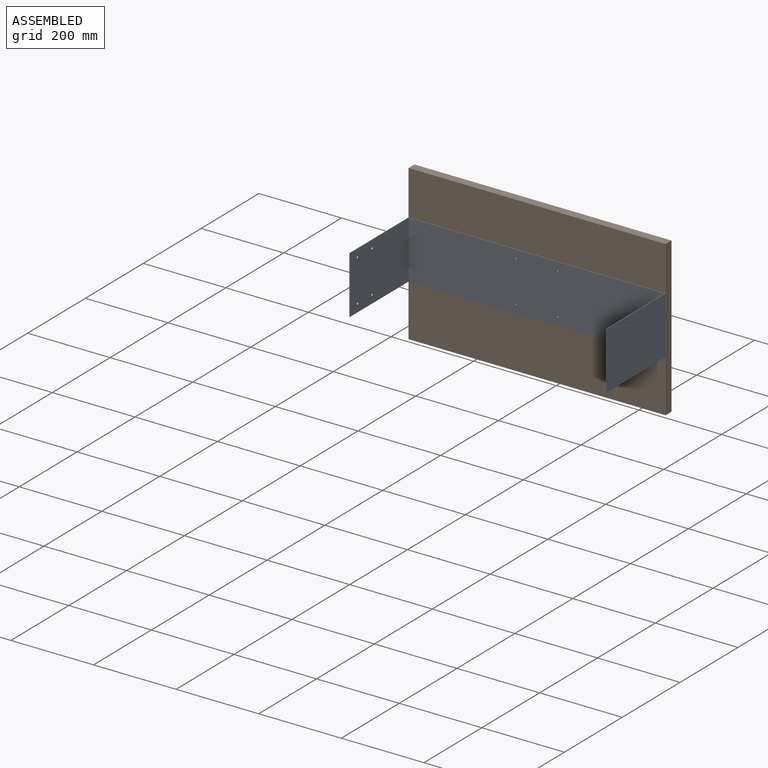
[diagram: assembled view]
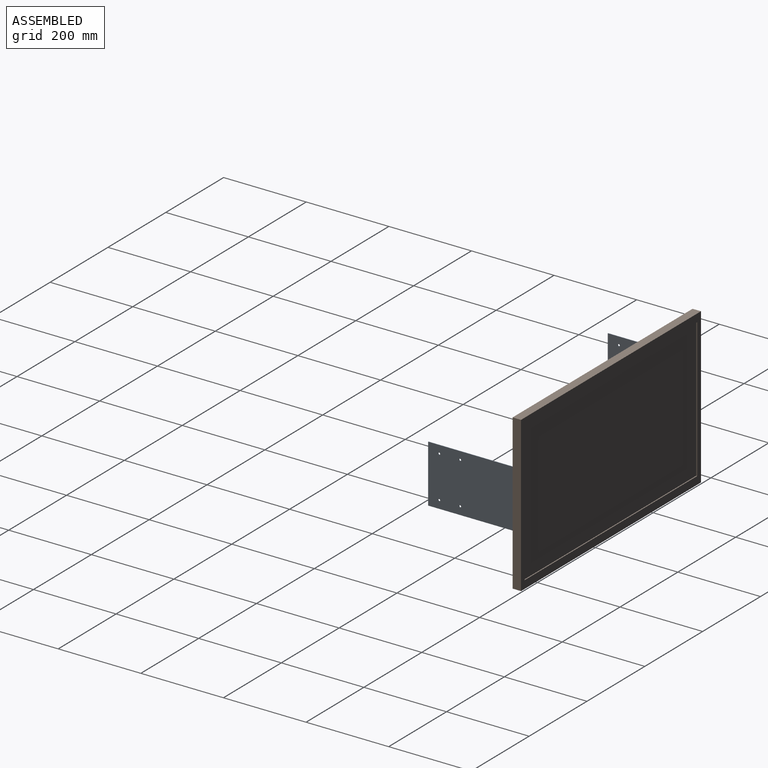
[diagram: assembled view, second angle]
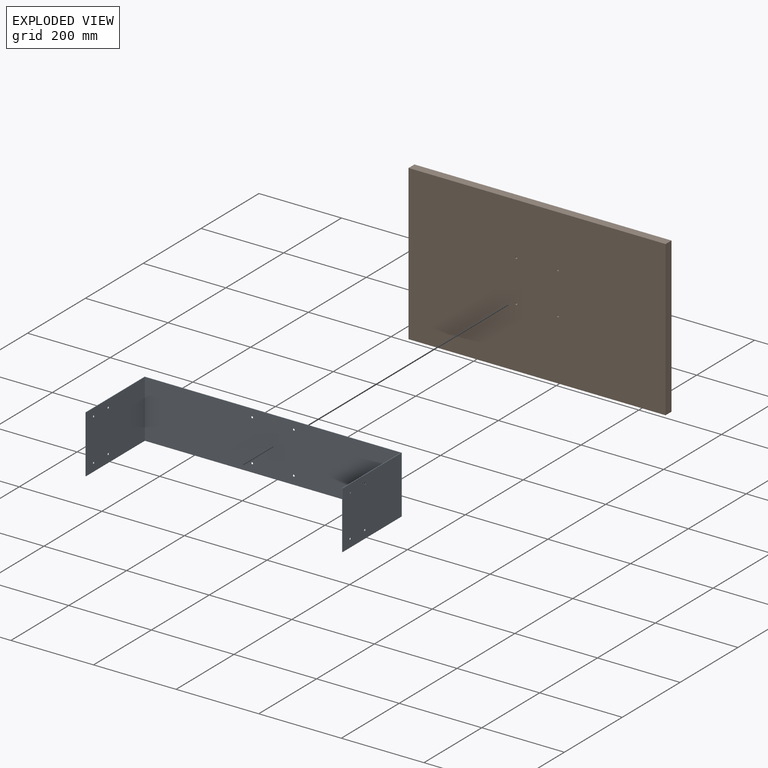
[diagram: exploded view]
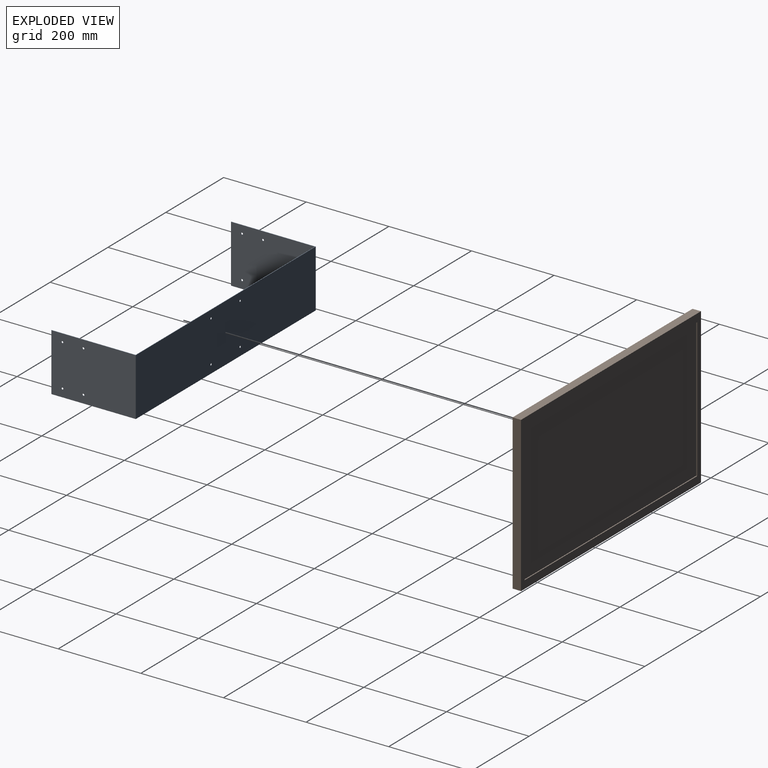
[diagram: exploded view, second angle]
ASSEMBLY  parts=2 mates=3
PART A: 22 faces, bbox 622.3x204.4x139.7 mm
  f0: plane 619.86x139.7mm, normal (0,-1,0), area 86523.4mm2, adj f2,f4,f6,f7,f8,f9,f10,f13
  f1: plane 204.42x139.7mm, normal (-1,0,0), area 28486.1mm2, adj f2,f4,f5,f11,f18,f19,f20,f21
  f2: plane 622.3x204.42mm, normal (0,0,-1), area 1254.2mm2, adj f0,f1,f3,f5,f10,f11,f12,f13
  f3: plane 204.42x139.7mm, normal (1,0,0), area 28486.1mm2, adj f2,f4,f5,f12,f14,f15,f16,f17
  f4: plane 622.3x204.42mm, normal (0,0,1), area 1254.2mm2, adj f0,f1,f3,f5,f10,f11,f12,f13
  f5: plane 622.3x139.7mm, normal (0,1,0), area 86864.1mm2, adj f1,f2,f3,f4,f6,f7,f8,f9
  f6: cylinder r=2.38mm len=4.76mm, axis (0,-1,0), area 18.2mm2, adj f0,f5
  f7: cylinder r=2.38mm len=4.76mm, axis (0,-1,0), area 18.2mm2, adj f0,f5
  f8: cylinder r=2.38mm len=4.76mm, axis (0,-1,0), area 18.2mm2, adj f0,f5
  f9: cylinder r=2.38mm len=4.76mm, axis (0,-1,0), area 18.2mm2, adj f0,f5
  f10: plane 203.2x139.7mm, normal (1,0,0), area 28315.8mm2, adj f0,f2,f4,f11,f18,f19,f20,f21
  f11: plane 139.7x1.22mm, normal (0,-1,0), area 170.3mm2, adj f1,f2,f4,f10
  f12: plane 139.7x1.22mm, normal (0,-1,0), area 170.3mm2, adj f2,f3,f4,f13
  f13: plane 203.2x139.7mm, normal (-1,0,0), area 28315.8mm2, adj f0,f2,f4,f12,f14,f15,f16,f17
  f14: cylinder r=2.38mm len=4.76mm, axis (1,0,0), area 18.2mm2, adj f3,f13
  f15: cylinder r=2.38mm len=4.76mm, axis (1,0,0), area 18.2mm2, adj f3,f13
  f16: cylinder r=2.38mm len=4.76mm, axis (1,0,0), area 18.2mm2, adj f3,f13
  f17: cylinder r=2.38mm len=4.76mm, axis (1,0,0), area 18.2mm2, adj f3,f13
  f18: cylinder r=2.38mm len=4.76mm, axis (1,0,0), area 18.2mm2, adj f1,f10
  f19: cylinder r=2.38mm len=4.76mm, axis (1,0,0), area 18.2mm2, adj f1,f10
  f20: cylinder r=2.38mm len=4.76mm, axis (1,0,0), area 18.2mm2, adj f1,f10
  f21: cylinder r=2.38mm len=4.76mm, axis (1,0,0), area 18.2mm2, adj f1,f10
PART B: 19 faces, bbox 622.3x20.3x374.7 mm
  f0: plane 374.65x20.32mm, normal (-1,0,0), area 7612.9mm2, adj f1,f3,f4,f5
  f1: plane 622.3x20.32mm, normal (0,0,-1), area 12645.1mm2, adj f0,f2,f4,f5
  f2: plane 374.65x20.32mm, normal (1,0,0), area 7612.9mm2, adj f1,f3,f4,f5
  f3: plane 622.3x20.32mm, normal (0,0,1), area 12645.1mm2, adj f0,f2,f4,f5
  f4: plane 622.3x374.65mm, normal (0,-1,0), area 233073.4mm2, adj f0,f1,f2,f3,f11,f13,f15,f17
  f5: plane 622.3x374.65mm, normal (0,1,0), area 32258mm2, adj f0,f1,f2,f3,f6,f7,f8,f9
  f6: plane 336.55x2.54mm, normal (1,0,0), area 854.8mm2, adj f5,f7,f9,f10
  f7: plane 596.9x2.54mm, normal (0,0,1), area 1516.1mm2, adj f5,f6,f8,f10
  f8: plane 336.55x2.54mm, normal (-1,0,0), area 854.8mm2, adj f5,f7,f9,f10
  f9: plane 596.9x2.54mm, normal (0,0,-1), area 1516.1mm2, adj f5,f6,f8,f10
  f10: plane 596.9x336.55mm, normal (0,1,0), area 200886.7mm2, adj f6,f7,f8,f9
  f11: cylinder r=2.38mm len=5.08mm, axis (0,-1,0), area 76mm2, adj f4,f12
  f12: plane 4.76x4.76mm, normal (0,-1,0), area 17.8mm2, adj f11
  f13: cylinder r=2.38mm len=5.08mm, axis (0,-1,0), area 76mm2, adj f4,f14
  f14: plane 4.76x4.76mm, normal (0,-1,0), area 17.8mm2, adj f13
  f15: cylinder r=2.38mm len=5.08mm, axis (0,-1,0), area 76mm2, adj f4,f16
  f16: plane 4.76x4.76mm, normal (0,-1,0), area 17.8mm2, adj f15
  f17: cylinder r=2.38mm len=5.08mm, axis (0,-1,0), area 76mm2, adj f4,f18
  f18: plane 4.76x4.76mm, normal (0,-1,0), area 17.8mm2, adj f17
PLACE A t=(-39.53,-9.84,48.05)mm
PLACE B t=(-39.53,10.48,38.52)mm fixed
MATE cylindrical A.f8 <-> B.f17  axis (0,-1,0) through (10.86,-11.06,98.85)mm
MATE cylindrical A.f6 <-> B.f11  axis (0,-1,0) through (-89.91,-11.06,98.85)mm
MATE fastened B.f15 <-> A.f9  axis (0,-1,0) through (-89.91,-9.84,-1.91)mm
